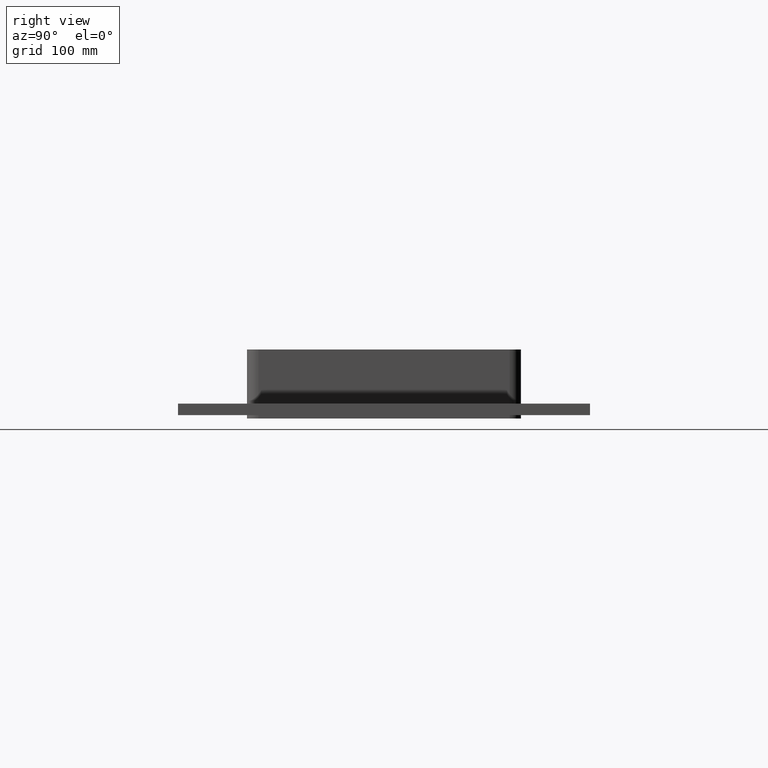
[diagram: clean part render]
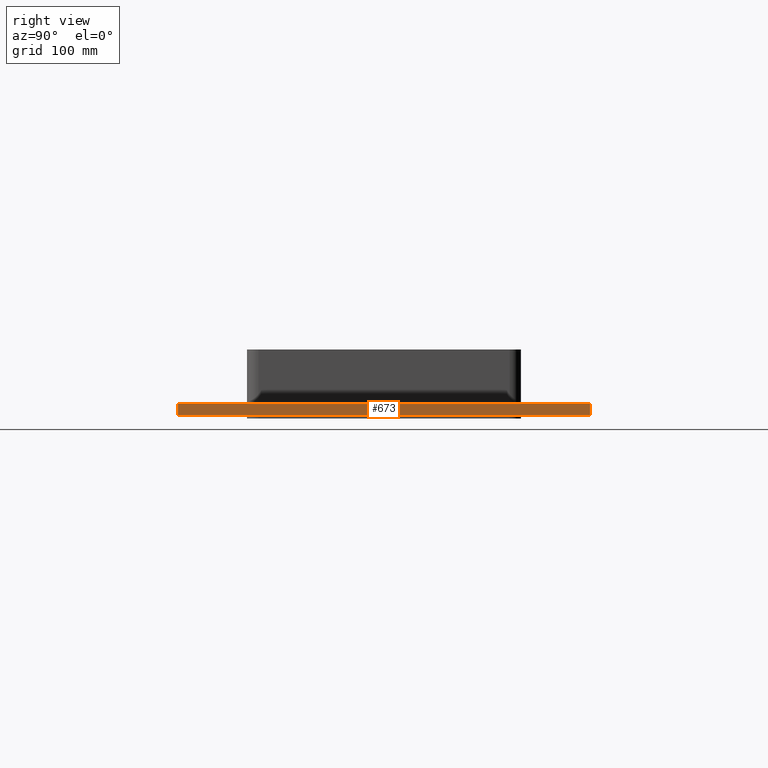
[diagram: same view with one face highlighted and labeled with its STEP entity id]
A machine part, right view. The second image highlights one B-rep face of the part: STEP entity #673.
In plain terms, the highlighted planar face has unit normal (1, 0, 0).
Its self-contained STEP definition (entity closure, byte-faithful):
#617=CARTESIAN_POINT('',(260.75,179.00000000000006,-27.0));
#618=VERTEX_POINT('',#617);
#626=CARTESIAN_POINT('',(260.75,179.00000000000006,-17.0));
#627=VERTEX_POINT('',#626);
#634=CARTESIAN_POINT('',(260.75,179.00000000000006,-27.0));
#635=DIRECTION('',(0.0,0.0,1.0));
#636=VECTOR('',#635,10.0);
#637=LINE('',#634,#636);
#638=EDGE_CURVE('',#618,#627,#637,.T.);
#643=CARTESIAN_POINT('',(260.75000000000006,-179.0,-27.0));
#644=DIRECTION('',(1.0,0.0,0.0));
#645=DIRECTION('',(0.0,1.0,0.0));
#646=AXIS2_PLACEMENT_3D('',#643,#644,#645);
#647=PLANE('',#646);
#648=CARTESIAN_POINT('',(260.75000000000006,-179.0,-27.0));
#649=VERTEX_POINT('',#648);
#650=CARTESIAN_POINT('',(260.75,179.00000000000006,-27.0));
#651=DIRECTION('',(0.0,-1.0,0.0));
#652=VECTOR('',#651,358.00000000000006);
#653=LINE('',#650,#652);
#654=EDGE_CURVE('',#618,#649,#653,.T.);
#655=ORIENTED_EDGE('',*,*,#654,.F.);
#656=ORIENTED_EDGE('',*,*,#638,.T.);
#657=CARTESIAN_POINT('',(260.75000000000006,-179.0,-17.0));
#658=VERTEX_POINT('',#657);
#659=CARTESIAN_POINT('',(260.75000000000006,-179.0,-17.0));
#660=DIRECTION('',(0.0,1.0,0.0));
#661=VECTOR('',#660,358.00000000000006);
#662=LINE('',#659,#661);
#663=EDGE_CURVE('',#658,#627,#662,.T.);
#664=ORIENTED_EDGE('',*,*,#663,.F.);
#665=CARTESIAN_POINT('',(260.75000000000006,-179.0,-27.0));
#666=DIRECTION('',(0.0,0.0,1.0));
#667=VECTOR('',#666,10.0);
#668=LINE('',#665,#667);
#669=EDGE_CURVE('',#649,#658,#668,.T.);
#670=ORIENTED_EDGE('',*,*,#669,.F.);
#671=EDGE_LOOP('',(#655,#656,#664,#670));
#672=FACE_OUTER_BOUND('',#671,.T.);
#673=ADVANCED_FACE('',(#672),#647,.T.);